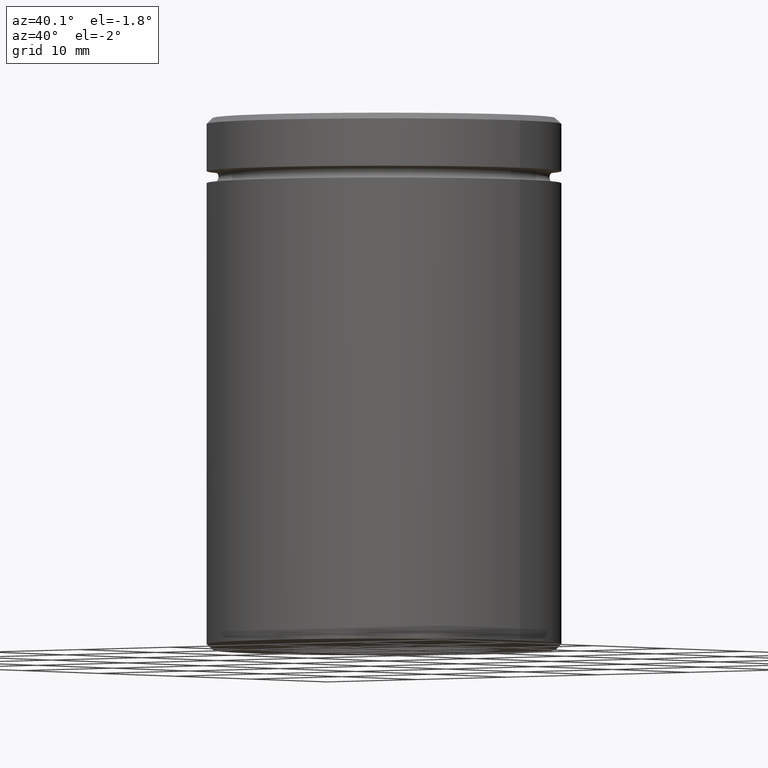
[diagram: clean part render]
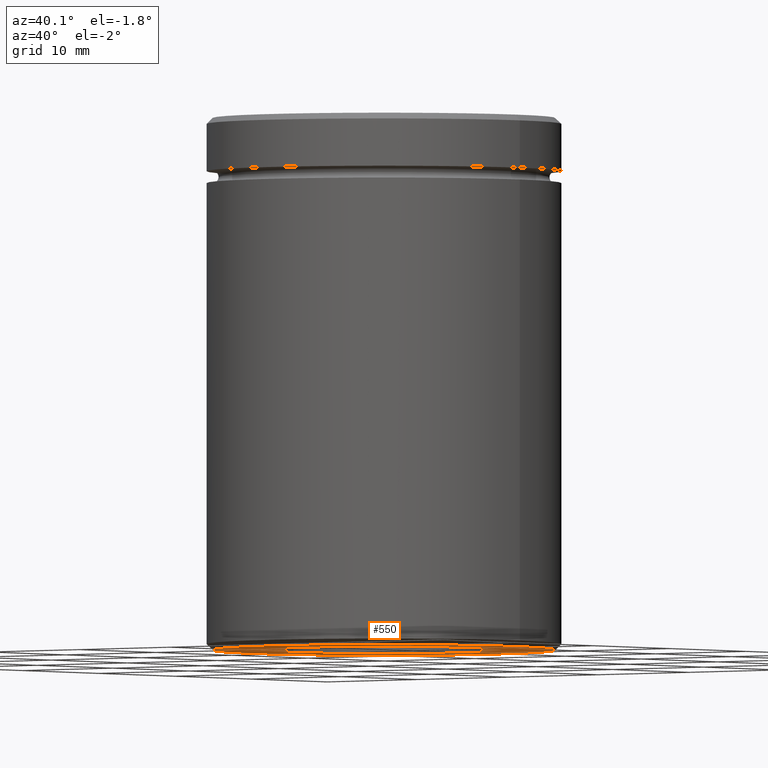
[diagram: same view with one face highlighted and labeled with its STEP entity id]
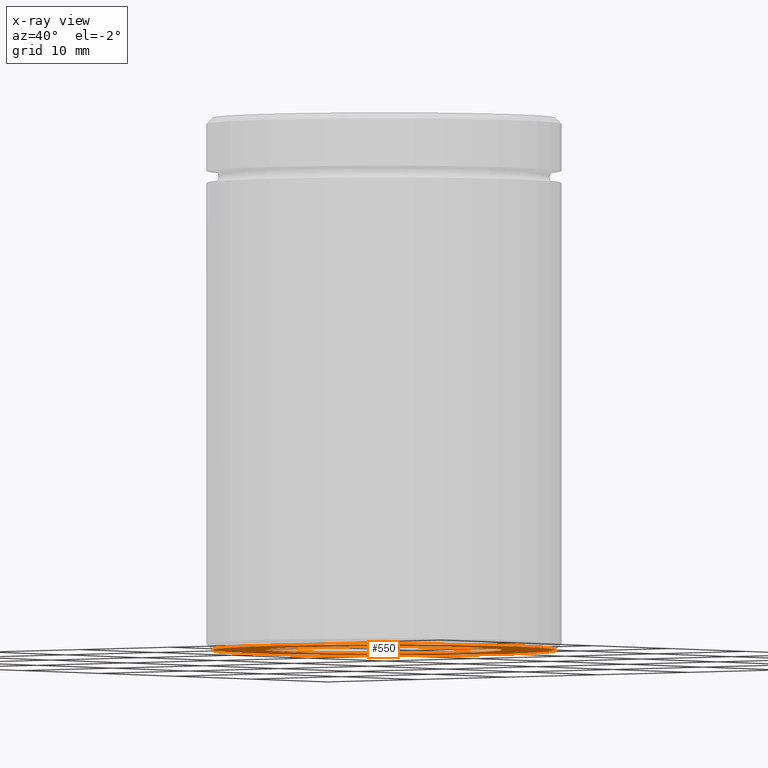
[diagram: x-ray of the same camera — body ghosted, the highlighted face saturated]
A machine part, auxiliary view. The second image highlights one B-rep face of the part: STEP entity #550.
The next image is the same camera in x-ray: the body ghosted, the highlighted face saturated — about 0% of this face is hidden behind the body in this view.
In plain terms, the highlighted planar face has unit normal (0, 0, -1).
Its self-contained STEP definition (entity closure, byte-faithful):
#32 = DIRECTION ( 'NONE',  ( -1.000000000000000000, 0.000000000000000000, 0.000000000000000000 ) ) ;
#40 = FACE_BOUND ( 'NONE', #418, .T. ) ;
#74 = DIRECTION ( 'NONE',  ( -1.000000000000000000, 0.000000000000000000, 0.000000000000000000 ) ) ;
#75 = CARTESIAN_POINT ( 'NONE',  ( -10.00000000000000000, 0.000000000000000000, -45.00000000000000000 ) ) ;
#108 = CARTESIAN_POINT ( 'NONE',  ( 0.000000000000000000, 0.000000000000000000, -45.00000000000000000 ) ) ;
#123 = DIRECTION ( 'NONE',  ( 0.000000000000000000, 0.000000000000000000, -1.000000000000000000 ) ) ;
#129 = VERTEX_POINT ( 'NONE', #75 ) ;
#130 = DIRECTION ( 'NONE',  ( -1.000000000000000000, 0.000000000000000000, -0.000000000000000000 ) ) ;
#132 = AXIS2_PLACEMENT_3D ( 'NONE', #219, #442, #130 ) ;
#137 = ORIENTED_EDGE ( 'NONE', *, *, #520, .T. ) ;
#149 = CIRCLE ( 'NONE', #385, 14.49999999999999112 ) ;
#166 = DIRECTION ( 'NONE',  ( 0.000000000000000000, 0.000000000000000000, -1.000000000000000000 ) ) ;
#178 = ORIENTED_EDGE ( 'NONE', *, *, #563, .F. ) ;
#179 = DIRECTION ( 'NONE',  ( -1.000000000000000000, 0.000000000000000000, 0.000000000000000000 ) ) ;
#186 = EDGE_CURVE ( 'NONE', #484, #129, #512, .T. ) ;
#213 = AXIS2_PLACEMENT_3D ( 'NONE', #427, #166, #32 ) ;
#219 = CARTESIAN_POINT ( 'NONE',  ( 0.000000000000000000, 15.00000000000000000, -45.00000000000000000 ) ) ;
#256 = DIRECTION ( 'NONE',  ( -1.000000000000000000, 0.000000000000000000, 0.000000000000000000 ) ) ;
#268 = VERTEX_POINT ( 'NONE', #474 ) ;
#296 = DIRECTION ( 'NONE',  ( 0.000000000000000000, 0.000000000000000000, -1.000000000000000000 ) ) ;
#303 = CARTESIAN_POINT ( 'NONE',  ( 0.000000000000000000, 0.000000000000000000, -45.00000000000000000 ) ) ;
#313 = ORIENTED_EDGE ( 'NONE', *, *, #186, .F. ) ;
#318 = AXIS2_PLACEMENT_3D ( 'NONE', #108, #426, #256 ) ;
#329 = CARTESIAN_POINT ( 'NONE',  ( 10.00000000000000000, 1.224646799147353059E-15, -45.00000000000000000 ) ) ;
#332 = CARTESIAN_POINT ( 'NONE',  ( 0.000000000000000000, 0.000000000000000000, -45.00000000000000000 ) ) ;
#363 = CIRCLE ( 'NONE', #318, 14.49999999999999112 ) ;
#377 = VERTEX_POINT ( 'NONE', #424 ) ;
#385 = AXIS2_PLACEMENT_3D ( 'NONE', #332, #296, #74 ) ;
#405 = ORIENTED_EDGE ( 'NONE', *, *, #529, .T. ) ;
#418 = EDGE_LOOP ( 'NONE', ( #178, #313 ) ) ;
#424 = CARTESIAN_POINT ( 'NONE',  ( -14.49999999999999112, 1.806354028742345013E-15, -45.00000000000000000 ) ) ;
#426 = DIRECTION ( 'NONE',  ( 0.000000000000000000, 0.000000000000000000, -1.000000000000000000 ) ) ;
#427 = CARTESIAN_POINT ( 'NONE',  ( 0.000000000000000000, 0.000000000000000000, -45.00000000000000000 ) ) ;
#442 = DIRECTION ( 'NONE',  ( 0.000000000000000000, 0.000000000000000000, -1.000000000000000000 ) ) ;
#453 = AXIS2_PLACEMENT_3D ( 'NONE', #303, #123, #179 ) ;
#454 = EDGE_LOOP ( 'NONE', ( #137, #405 ) ) ;
#473 = CIRCLE ( 'NONE', #453, 10.00000000000000000 ) ;
#474 = CARTESIAN_POINT ( 'NONE',  ( 14.49999999999999112, 0.000000000000000000, -45.00000000000000000 ) ) ;
#484 = VERTEX_POINT ( 'NONE', #329 ) ;
#506 = FACE_OUTER_BOUND ( 'NONE', #454, .T. ) ;
#512 = CIRCLE ( 'NONE', #213, 10.00000000000000000 ) ;
#520 = EDGE_CURVE ( 'NONE', #268, #377, #363, .T. ) ;
#526 = PLANE ( 'NONE',  #132 ) ;
#529 = EDGE_CURVE ( 'NONE', #377, #268, #149, .T. ) ;
#550 = ADVANCED_FACE ( 'NONE', ( #506, #40 ), #526, .T. ) ;
#563 = EDGE_CURVE ( 'NONE', #129, #484, #473, .T. ) ;